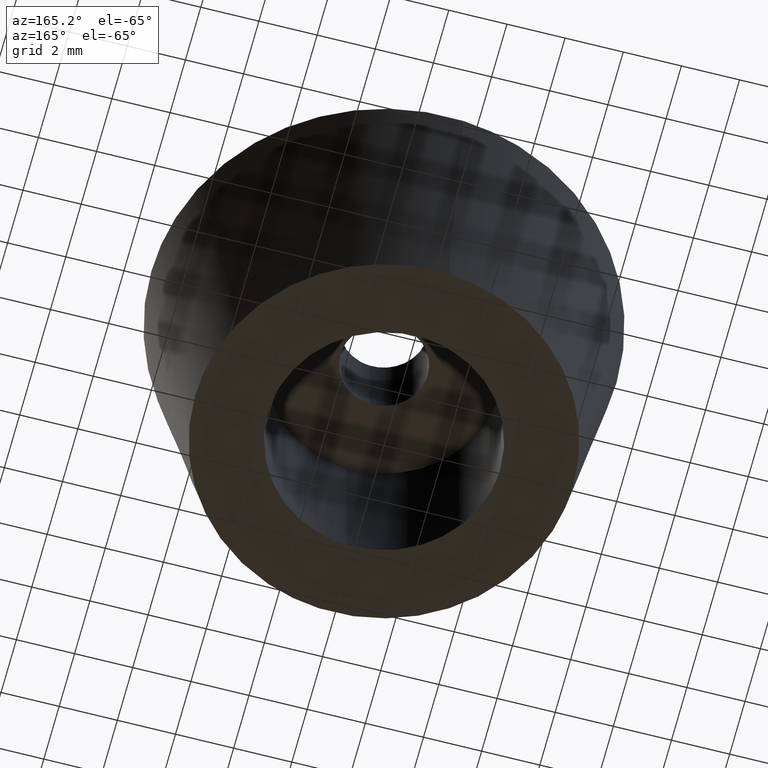
[diagram: clean part render]
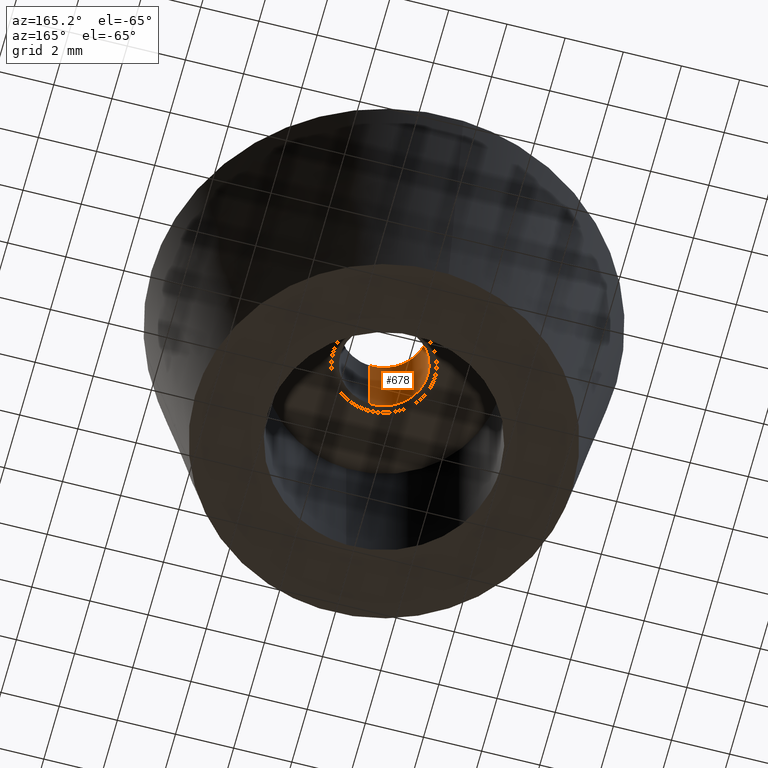
[diagram: same view with one face highlighted and labeled with its STEP entity id]
A machine part, auxiliary view. The second image highlights one B-rep face of the part: STEP entity #678.
In plain terms, the highlighted face is a freeform B-spline surface patch.
Its self-contained STEP definition (entity closure, byte-faithful):
#515=CARTESIAN_POINT('',(-0.177051351996448,1.489514289544155,6.0));
#516=VERTEX_POINT('',#515);
#534=CARTESIAN_POINT('',(0.091572809311081,-1.497202197632262,6.000000000000001));
#535=VERTEX_POINT('',#534);
#549=CARTESIAN_POINT('',(0.091572809311081,-1.497202197632262,9.0));
#550=VERTEX_POINT('',#549);
#551=CARTESIAN_POINT('',(0.091572809311081,-1.497202197632262,9.0));
#552=CARTESIAN_POINT('',(0.091572809311081,-1.497202197632262,6.000000000000001));
#553=QUASI_UNIFORM_CURVE('',1,(#551,#552),.UNSPECIFIED.,.F.,.U.);
#554=EDGE_CURVE('',#550,#535,#553,.T.);
#571=CARTESIAN_POINT('',(-0.177051351996448,1.489514289544155,9.0));
#572=VERTEX_POINT('',#571);
#588=CARTESIAN_POINT('',(-0.177051351996448,1.489514289544155,9.0));
#589=CARTESIAN_POINT('',(-0.177051351996448,1.489514289544155,6.0));
#590=QUASI_UNIFORM_CURVE('',1,(#588,#589),.UNSPECIFIED.,.F.,.U.);
#591=EDGE_CURVE('',#572,#516,#590,.T.);
#596=CARTESIAN_POINT('',(0.091572809302285,-1.497202197632800,9.075000000000001));
#597=CARTESIAN_POINT('',(-1.405629388330515,-1.588775006935085,9.075000000000001));
#598=CARTESIAN_POINT('',(-1.497202197632800,-0.091572809302285,9.075000000000001));
#599=CARTESIAN_POINT('',(-1.583679295098791,1.322315236259252,9.075000000000001));
#600=CARTESIAN_POINT('',(-0.177051351985138,1.489514289545500,9.075000000000005));
#601=CARTESIAN_POINT('',(0.091572809302285,-1.497202197632800,5.923124999999999));
#602=CARTESIAN_POINT('',(-1.405629388330515,-1.588775006935085,5.923124999999998));
#603=CARTESIAN_POINT('',(-1.497202197632800,-0.091572809302285,5.923124999999999));
#604=CARTESIAN_POINT('',(-1.583679295098791,1.322315236259252,5.923124999999999));
#605=CARTESIAN_POINT('',(-0.177051351985138,1.489514289545500,5.923125000000000));
#613=(BOUNDED_SURFACE()B_SPLINE_SURFACE(2,1,((#596,#601),(#597,#602),(#598,#603),(#599,#604),(#600,#605)),.UNSPECIFIED.,.F.,.F.,.U.)B_SPLINE_SURFACE_WITH_KNOTS((3,2,3),(2,2),(0.0,1.570796326794897,3.078760800517997),(0.0,3.151875000000004),.UNSPECIFIED.)GEOMETRIC_REPRESENTATION_ITEM()RATIONAL_B_SPLINE_SURFACE(((1.0,1.0),(0.707106781186548,0.707106781186548),(1.0,1.0),(0.718822509939086,0.718822509939086),(0.977505800795127,0.977505800795127)))REPRESENTATION_ITEM('')SURFACE());
#614=CARTESIAN_POINT('',(-1.500000000000000,0.0,6.0));
#615=VERTEX_POINT('',#614);
#616=CARTESIAN_POINT('',(-1.500000000000000,0.0,6.0));
#617=CARTESIAN_POINT('',(-1.500000000000000,1.332261788906676,6.000000000000002));
#618=CARTESIAN_POINT('',(-0.177051351996448,1.489514289544155,6.0));
#626=(BOUNDED_CURVE()B_SPLINE_CURVE(2,(#616,#617,#618),.UNSPECIFIED.,.F.,.U.)B_SPLINE_CURVE_WITH_KNOTS((3,3),(0.0,0.229562473513078),.UNSPECIFIED.)CURVE()GEOMETRIC_REPRESENTATION_ITEM()RATIONAL_B_SPLINE_CURVE((1.0,0.731050832855907,0.956026754182855))REPRESENTATION_ITEM(''));
#627=EDGE_CURVE('',#615,#516,#626,.T.);
#628=ORIENTED_EDGE('',*,*,#627,.T.);
#629=ORIENTED_EDGE('',*,*,#591,.F.);
#630=CARTESIAN_POINT('',(-1.500000000000000,0.0,9.0));
#631=VERTEX_POINT('',#630);
#632=CARTESIAN_POINT('',(-1.500000000000000,0.0,9.0));
#633=CARTESIAN_POINT('',(-1.500000000000000,1.332261788906676,9.0));
#634=CARTESIAN_POINT('',(-0.177051351996448,1.489514289544155,9.0));
#642=(BOUNDED_CURVE()B_SPLINE_CURVE(2,(#632,#633,#634),.UNSPECIFIED.,.F.,.U.)B_SPLINE_CURVE_WITH_KNOTS((3,3),(0.0,0.229562473513078),.UNSPECIFIED.)CURVE()GEOMETRIC_REPRESENTATION_ITEM()RATIONAL_B_SPLINE_CURVE((1.0,0.731050832855907,0.956026754182855))REPRESENTATION_ITEM(''));
#643=EDGE_CURVE('',#631,#572,#642,.T.);
#644=ORIENTED_EDGE('',*,*,#643,.F.);
#645=CARTESIAN_POINT('',(0.091572809311081,-1.497202197632263,9.0));
#646=CARTESIAN_POINT('',(0.045829144956703,-1.500000000000000,9.000000000000002));
#647=CARTESIAN_POINT('',(0.0,-1.500000000000000,9.0));
#648=CARTESIAN_POINT('',(-1.500000000000000,-1.500000000000000,9.000000000000002));
#649=CARTESIAN_POINT('',(-1.500000000000000,0.0,9.0));
#657=(BOUNDED_CURVE()B_SPLINE_CURVE(2,(#645,#646,#647,#648,#649),.UNSPECIFIED.,.F.,.U.)B_SPLINE_CURVE_WITH_KNOTS((3,2,3),(0.739332962239941,0.750000000000000,1.0),.UNSPECIFIED.)CURVE()GEOMETRIC_REPRESENTATION_ITEM()RATIONAL_B_SPLINE_CURVE((0.976072041668857,0.987502787901007,1.0,0.707106781186548,1.0))REPRESENTATION_ITEM(''));
#658=EDGE_CURVE('',#550,#631,#657,.T.);
#659=ORIENTED_EDGE('',*,*,#658,.F.);
#660=ORIENTED_EDGE('',*,*,#554,.T.);
#661=CARTESIAN_POINT('',(0.091572809311081,-1.497202197632263,6.000000000000001));
#662=CARTESIAN_POINT('',(0.045829144956703,-1.500000000000000,6.0));
#663=CARTESIAN_POINT('',(0.0,-1.500000000000000,6.0));
#664=CARTESIAN_POINT('',(-1.500000000000000,-1.500000000000000,6.0));
#665=CARTESIAN_POINT('',(-1.500000000000000,0.0,6.0));
#673=(BOUNDED_CURVE()B_SPLINE_CURVE(2,(#661,#662,#663,#664,#665),.UNSPECIFIED.,.F.,.U.)B_SPLINE_CURVE_WITH_KNOTS((3,2,3),(0.739332962239941,0.750000000000000,1.0),.UNSPECIFIED.)CURVE()GEOMETRIC_REPRESENTATION_ITEM()RATIONAL_B_SPLINE_CURVE((0.976072041668857,0.987502787901007,1.0,0.707106781186548,1.0))REPRESENTATION_ITEM(''));
#674=EDGE_CURVE('',#535,#615,#673,.T.);
#675=ORIENTED_EDGE('',*,*,#674,.T.);
#676=EDGE_LOOP('',(#628,#629,#644,#659,#660,#675));
#677=FACE_OUTER_BOUND('',#676,.T.);
#678=ADVANCED_FACE('',(#677),#613,.F.);